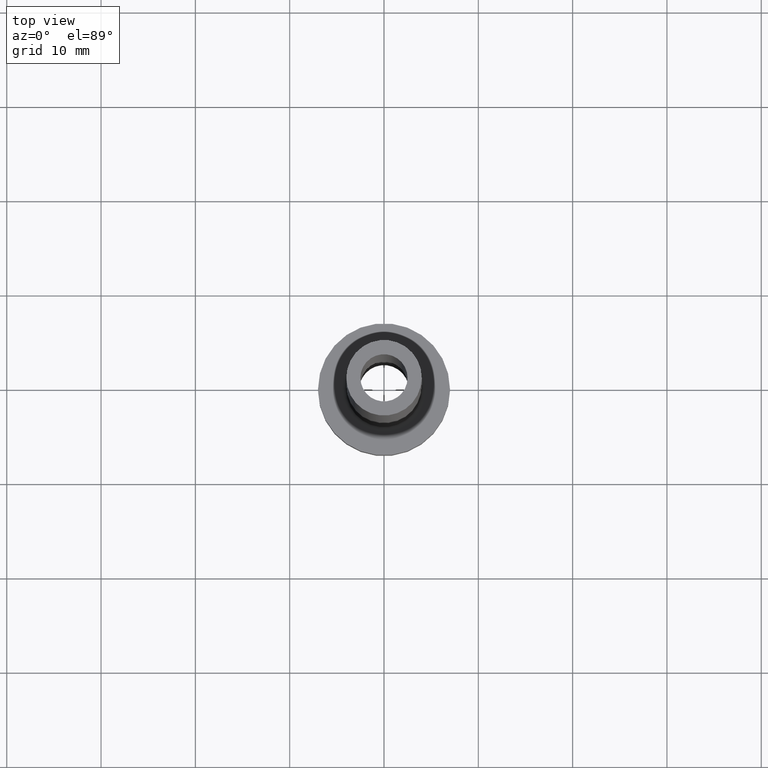
[diagram: clean part render]
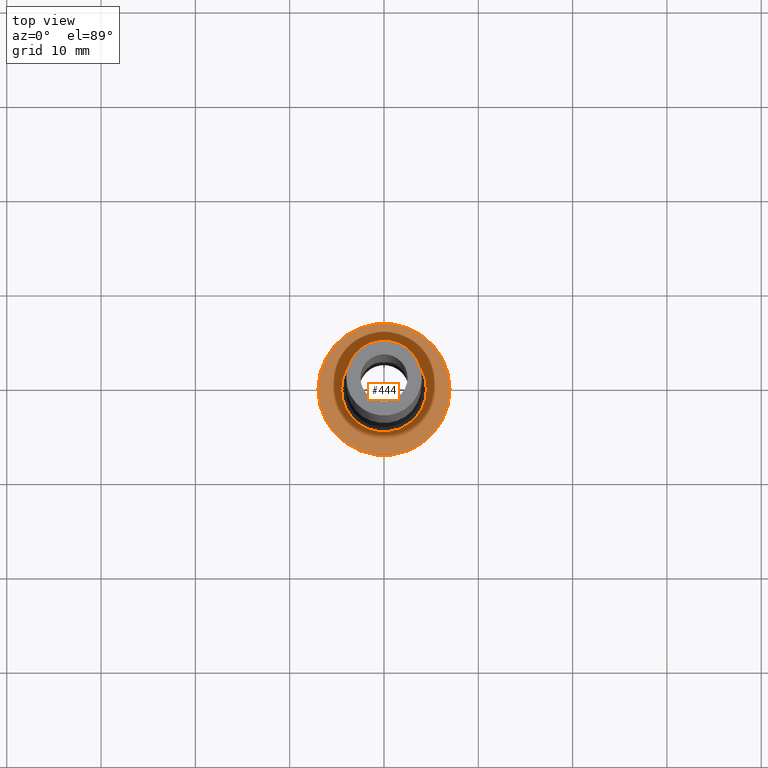
[diagram: same view with one face highlighted and labeled with its STEP entity id]
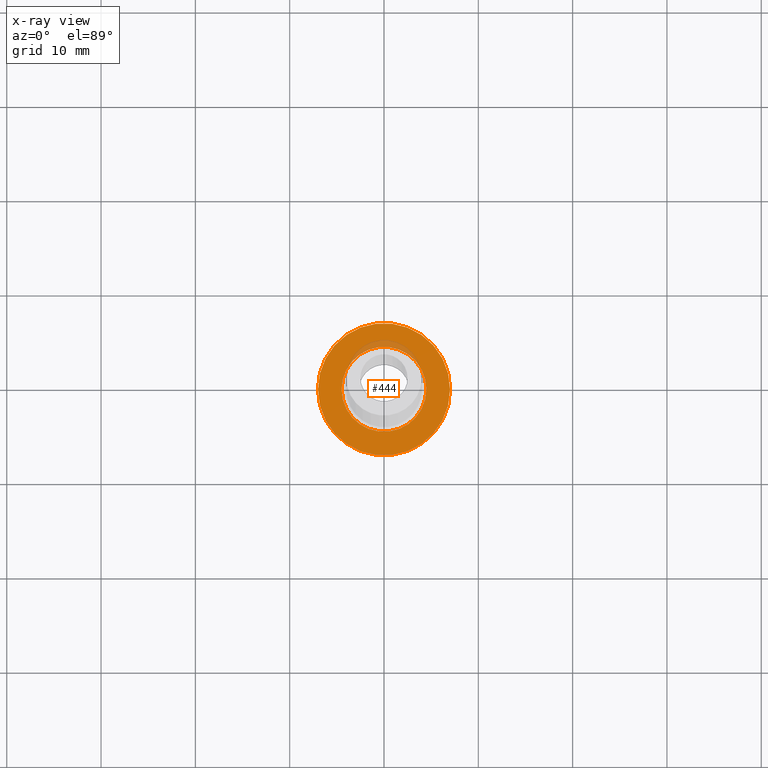
[diagram: x-ray of the same camera — body ghosted, the highlighted face saturated]
A machine part, top view. The second image highlights one B-rep face of the part: STEP entity #444.
The next image is the same camera in x-ray: the body ghosted, the highlighted face saturated — about 5% of this face is hidden behind the body in this view.
In plain terms, the highlighted planar face has unit normal (0, 0, 1).
Its self-contained STEP definition (entity closure, byte-faithful):
#5 = DIRECTION ( 'NONE',  ( 0.000000000000000000, 0.000000000000000000, 1.000000000000000000 ) ) ;
#18 = AXIS2_PLACEMENT_3D ( 'NONE', #43, #296, #85 ) ;
#40 = DIRECTION ( 'NONE',  ( 1.000000000000000000, 0.000000000000000000, 0.000000000000000000 ) ) ;
#43 = CARTESIAN_POINT ( 'NONE',  ( 0.000000000000000000, 0.000000000000000000, 5.000000000000000000 ) ) ;
#45 = EDGE_LOOP ( 'NONE', ( #294, #415 ) ) ;
#54 = VERTEX_POINT ( 'NONE', #58 ) ;
#58 = CARTESIAN_POINT ( 'NONE',  ( -7.000000000000000000, 0.000000000000000000, 5.000000000000000000 ) ) ;
#67 = CARTESIAN_POINT ( 'NONE',  ( 0.000000000000000000, 0.000000000000000000, 5.000000000000000000 ) ) ;
#70 = AXIS2_PLACEMENT_3D ( 'NONE', #67, #109, #206 ) ;
#74 = AXIS2_PLACEMENT_3D ( 'NONE', #80, #188, #40 ) ;
#78 = CARTESIAN_POINT ( 'NONE',  ( 7.000000000000000000, 8.572527594031473190E-16, 5.000000000000000000 ) ) ;
#80 = CARTESIAN_POINT ( 'NONE',  ( 0.000000000000000000, 0.000000000000000000, 5.000000000000000000 ) ) ;
#84 = EDGE_CURVE ( 'NONE', #356, #193, #330, .T. ) ;
#85 = DIRECTION ( 'NONE',  ( 1.000000000000000000, 0.000000000000000000, 0.000000000000000000 ) ) ;
#86 = CARTESIAN_POINT ( 'NONE',  ( 0.000000000000000000, 0.000000000000000000, 5.000000000000000000 ) ) ;
#93 = CARTESIAN_POINT ( 'NONE',  ( 4.500000000000000888, 0.000000000000000000, 5.000000000000002665 ) ) ;
#109 = DIRECTION ( 'NONE',  ( -0.000000000000000000, -0.000000000000000000, -1.000000000000000000 ) ) ;
#117 = EDGE_CURVE ( 'NONE', #54, #236, #244, .T. ) ;
#126 = DIRECTION ( 'NONE',  ( 1.000000000000000000, 0.000000000000000000, -0.000000000000000000 ) ) ;
#185 = CARTESIAN_POINT ( 'NONE',  ( 0.000000000000000000, 0.000000000000000000, 5.000000000000000000 ) ) ;
#188 = DIRECTION ( 'NONE',  ( 0.000000000000000000, 0.000000000000000000, 1.000000000000000000 ) ) ;
#193 = VERTEX_POINT ( 'NONE', #93 ) ;
#206 = DIRECTION ( 'NONE',  ( 1.000000000000000000, 0.000000000000000000, 0.000000000000000000 ) ) ;
#236 = VERTEX_POINT ( 'NONE', #78 ) ;
#244 = CIRCLE ( 'NONE', #288, 7.000000000000000000 ) ;
#272 = ORIENTED_EDGE ( 'NONE', *, *, #458, .T. ) ;
#279 = EDGE_CURVE ( 'NONE', #193, #356, #312, .T. ) ;
#288 = AXIS2_PLACEMENT_3D ( 'NONE', #185, #5, #332 ) ;
#291 = FACE_OUTER_BOUND ( 'NONE', #300, .T. ) ;
#294 = ORIENTED_EDGE ( 'NONE', *, *, #279, .T. ) ;
#296 = DIRECTION ( 'NONE',  ( -0.000000000000000000, -0.000000000000000000, -1.000000000000000000 ) ) ;
#297 = DIRECTION ( 'NONE',  ( 0.000000000000000000, 0.000000000000000000, 1.000000000000000000 ) ) ;
#300 = EDGE_LOOP ( 'NONE', ( #457, #272 ) ) ;
#312 = CIRCLE ( 'NONE', #18, 4.500000000000000888 ) ;
#330 = CIRCLE ( 'NONE', #70, 4.500000000000000888 ) ;
#332 = DIRECTION ( 'NONE',  ( 1.000000000000000000, 0.000000000000000000, 0.000000000000000000 ) ) ;
#333 = FACE_BOUND ( 'NONE', #45, .T. ) ;
#340 = AXIS2_PLACEMENT_3D ( 'NONE', #86, #297, #126 ) ;
#356 = VERTEX_POINT ( 'NONE', #418 ) ;
#415 = ORIENTED_EDGE ( 'NONE', *, *, #84, .T. ) ;
#418 = CARTESIAN_POINT ( 'NONE',  ( -4.500000000000000888, 5.510910596163088569E-16, 5.000000000000002665 ) ) ;
#432 = PLANE ( 'NONE',  #340 ) ;
#444 = ADVANCED_FACE ( 'NONE', ( #333, #291 ), #432, .T. ) ;
#453 = CIRCLE ( 'NONE', #74, 7.000000000000000000 ) ;
#457 = ORIENTED_EDGE ( 'NONE', *, *, #117, .T. ) ;
#458 = EDGE_CURVE ( 'NONE', #236, #54, #453, .T. ) ;